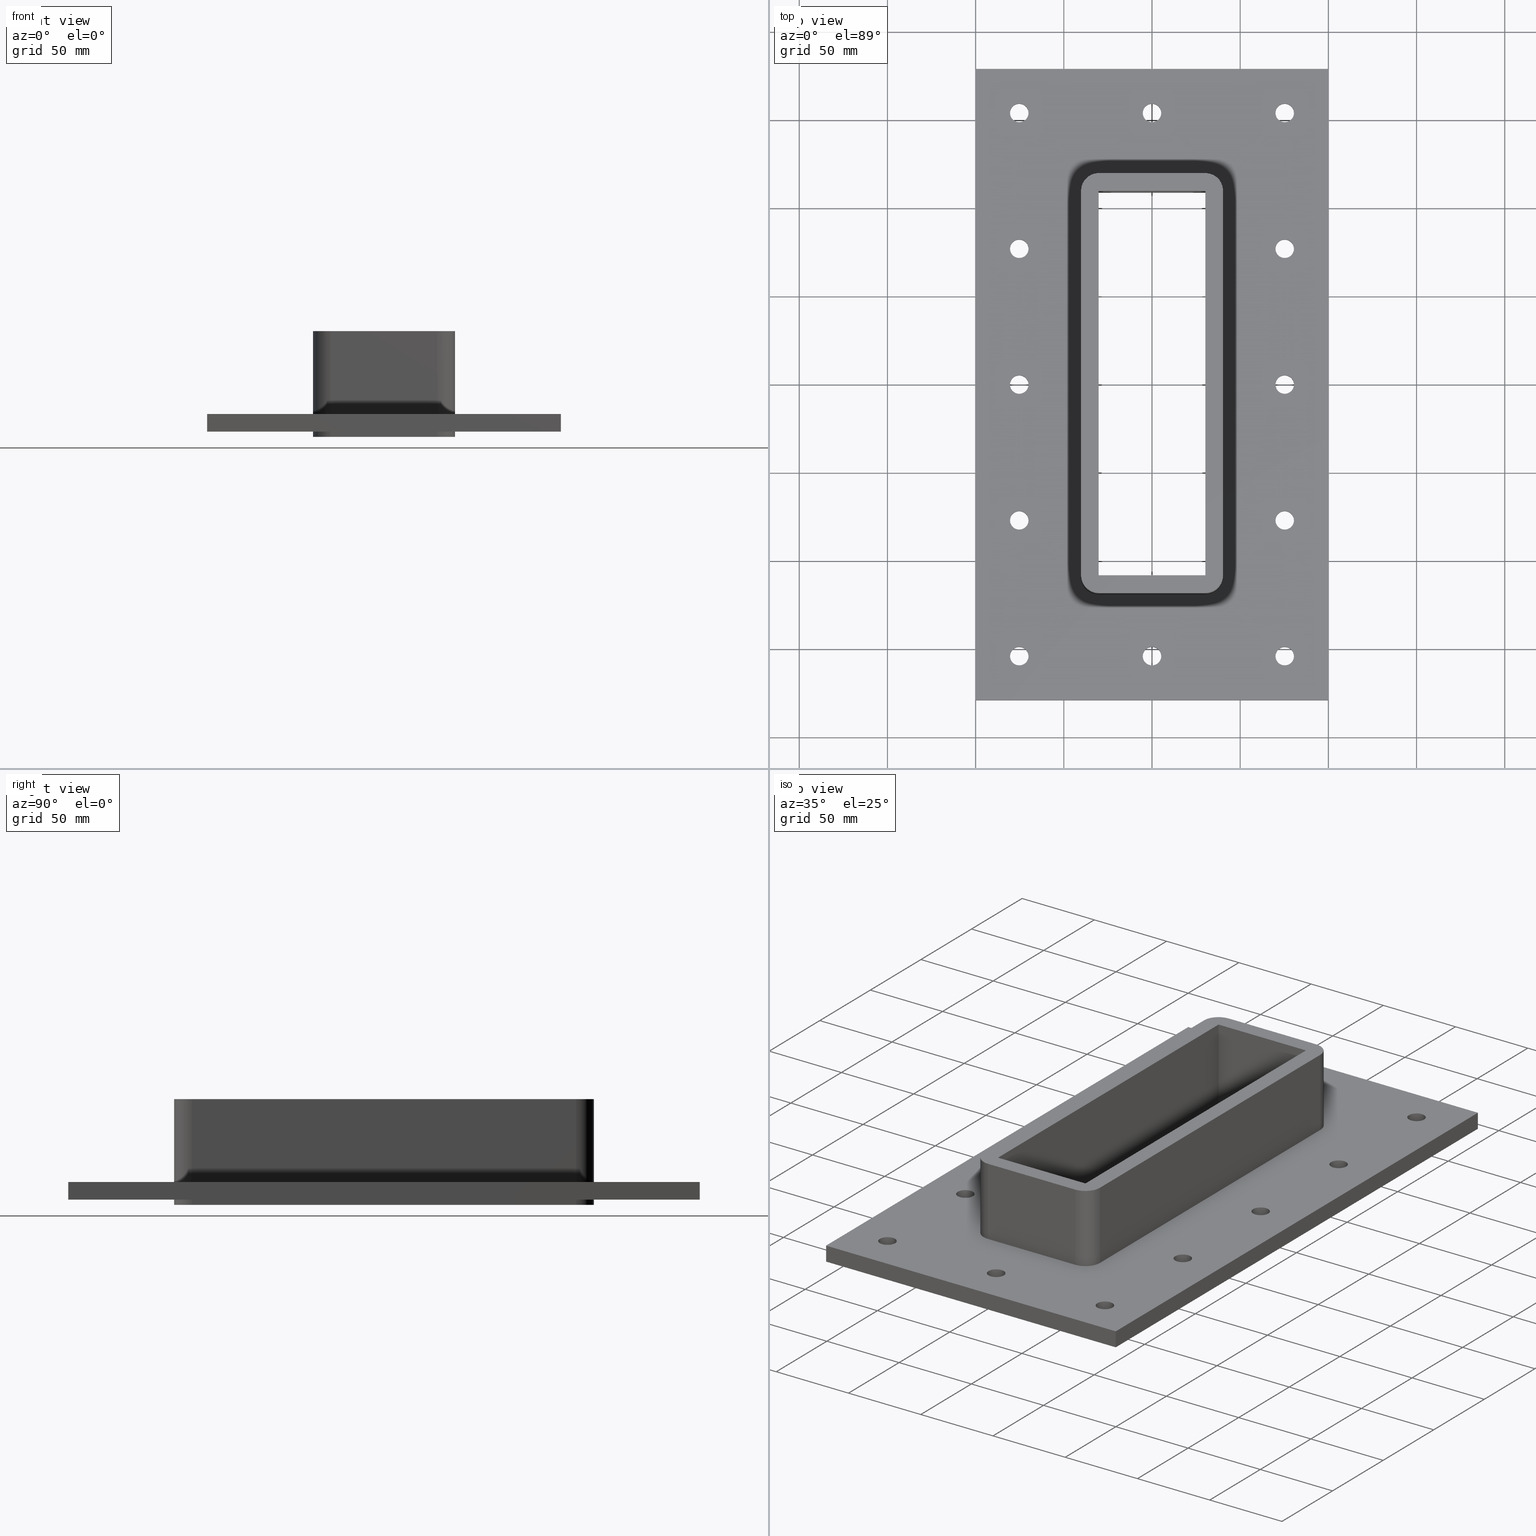
[diagram: canonical four-view strip — front | top / right | iso, engineering-drawing reading convention]
A machine part, canonical four-view strip (front | top / right | iso — engineering-drawing reading convention). The complete STEP part file that produces these views, byte-faithful:
ISO-10303-21;
HEADER;
/****************************************************************
 * Generated by software with PDElib inside                    *
 * PDElib Version v51a, created Wed 11/30/2011                  *
 * ITI Transcendata (http://www.transcendata.com/)              *
 ****************************************************************/
FILE_DESCRIPTION((''),'2;1');
FILE_NAME('C:\\Users\\se-milkar\\Desktop\\SFHM GENERATOR\\File dump\\SFHM5X1.stp','2017-01-17T17:24:51',(''),(''),'Autodesk Inventor 2013','Autodesk Inventor 2013','');
FILE_SCHEMA(('AUTOMOTIVE_DESIGN { 1 0 10303 214 1 1 1 1 }'));
ENDSEC;
DATA;
#5=APPLICATION_CONTEXT('automotive design');
#6=APPLICATION_PROTOCOL_DEFINITION('International Standard','automotive_design',2001,#5);
#7=PRODUCT_CONTEXT('',#5,'mechanical');
#8=PRODUCT('RTD-FRAME GENERATOR SF-LABB','RTD-FRAME GENERATOR SF-LABB',$,(#7));
#9=PRODUCT_RELATED_PRODUCT_CATEGORY('part',$,(#8));
#10=PRODUCT_DEFINITION_FORMATION('',$,#8);
#11=PRODUCT_DEFINITION_CONTEXT('part definition',#5,'design');
#12=PRODUCT_DEFINITION('',$,#10,#11);
#18=(NAMED_UNIT(*)PLANE_ANGLE_UNIT()SI_UNIT($,.RADIAN.));
#19=DIMENSIONAL_EXPONENTS(0.0,0.0,0.0,0.0,0.0,0.0,0.0);
#20=PLANE_ANGLE_MEASURE_WITH_UNIT(PLANE_ANGLE_MEASURE(0.0174532925),#18);
#24=(CONVERSION_BASED_UNIT('DEGREE',#20)NAMED_UNIT(#19)PLANE_ANGLE_UNIT());
#28=(NAMED_UNIT(*)SI_UNIT($,.STERADIAN.)SOLID_ANGLE_UNIT());
#32=(LENGTH_UNIT()NAMED_UNIT(*)SI_UNIT(.MILLI.,.METRE.));
#34=UNCERTAINTY_MEASURE_WITH_UNIT(LENGTH_MEASURE(0.01),#32,'DISTANCE_ACCURACY_VALUE','');
#36=(GEOMETRIC_REPRESENTATION_CONTEXT(3)GLOBAL_UNCERTAINTY_ASSIGNED_CONTEXT((#34))GLOBAL_UNIT_ASSIGNED_CONTEXT((#24,#28,#32))REPRESENTATION_CONTEXT('None','None'));
#37=AXIS2_PLACEMENT_3D('',#38,#39,#40);
#38=CARTESIAN_POINT('',(0.0,0.0,0.0));
#39=DIRECTION('',(0.0,0.0,1.0));
#40=DIRECTION('',(1.0,0.0,0.0));
#41=SHAPE_REPRESENTATION('',(#37),#36);
#42=PRODUCT_DEFINITION_SHAPE('','',#12);
#43=SHAPE_DEFINITION_REPRESENTATION(#42,#41);
#49=(NAMED_UNIT(*)PLANE_ANGLE_UNIT()SI_UNIT($,.RADIAN.));
#50=DIMENSIONAL_EXPONENTS(0.0,0.0,0.0,0.0,0.0,0.0,0.0);
#51=PLANE_ANGLE_MEASURE_WITH_UNIT(PLANE_ANGLE_MEASURE(0.0174532925),#49);
#55=(CONVERSION_BASED_UNIT('DEGREE',#51)NAMED_UNIT(#50)PLANE_ANGLE_UNIT());
#59=(NAMED_UNIT(*)SI_UNIT($,.STERADIAN.)SOLID_ANGLE_UNIT());
#63=(LENGTH_UNIT()NAMED_UNIT(*)SI_UNIT(.MILLI.,.METRE.));
#65=UNCERTAINTY_MEASURE_WITH_UNIT(LENGTH_MEASURE(0.000001),#63,'DISTANCE_ACCURACY_VALUE','');
#67=(GEOMETRIC_REPRESENTATION_CONTEXT(3)GLOBAL_UNCERTAINTY_ASSIGNED_CONTEXT((#65))GLOBAL_UNIT_ASSIGNED_CONTEXT((#55,#59,#63))REPRESENTATION_CONTEXT('','3D'));
#68=CARTESIAN_POINT('',(-1.776357E-014,-154.00000000000003,-431.68572437449546));
#69=DIRECTION('',(0.0,0.0,1.0));
#70=DIRECTION('',(1.0,0.0,0.0));
#71=AXIS2_PLACEMENT_3D('',#68,#69,#70);
#72=CYLINDRICAL_SURFACE('',#71,5.25);
#73=CARTESIAN_POINT('',(-5.250000000000021,-154.00000000000003,-27.000000000000028));
#74=VERTEX_POINT('',#73);
#75=CARTESIAN_POINT('',(-1.776357E-014,-154.00000000000003,-27.000000000000028));
#76=DIRECTION('',(0.0,0.0,1.0));
#77=DIRECTION('',(1.0,0.0,0.0));
#78=AXIS2_PLACEMENT_3D('',#75,#76,#77);
#79=CIRCLE('',#78,5.25);
#80=EDGE_CURVE('',#74,#74,#79,.T.);
#81=ORIENTED_EDGE('',*,*,#80,.F.);
#82=EDGE_LOOP('',(#81));
#83=FACE_OUTER_BOUND('',#82,.T.);
#84=CARTESIAN_POINT('',(5.249999999999986,-154.00000000000003,-17.0));
#85=VERTEX_POINT('',#84);
#86=CARTESIAN_POINT('',(-1.776357E-014,-154.00000000000003,-17.000000000000028));
#87=DIRECTION('',(0.0,0.0,-1.0));
#88=DIRECTION('',(1.0,0.0,0.0));
#89=AXIS2_PLACEMENT_3D('',#86,#87,#88);
#90=CIRCLE('',#89,5.25);
#91=EDGE_CURVE('',#85,#85,#90,.T.);
#92=ORIENTED_EDGE('',*,*,#91,.F.);
#93=EDGE_LOOP('',(#92));
#94=FACE_BOUND('',#93,.T.);
#95=ADVANCED_FACE('',(#83,#94),#72,.F.);
#96=CARTESIAN_POINT('',(-4.440892E-014,154.0,-431.68572437449546));
#97=DIRECTION('',(0.0,0.0,1.0));
#98=DIRECTION('',(1.0,0.0,0.0));
#99=AXIS2_PLACEMENT_3D('',#96,#97,#98);
#100=CYLINDRICAL_SURFACE('',#99,5.25);
#101=CARTESIAN_POINT('',(-5.250000000000039,154.0,-27.000000000000028));
#102=VERTEX_POINT('',#101);
#103=CARTESIAN_POINT('',(-4.440892E-014,154.0,-27.000000000000028));
#104=DIRECTION('',(0.0,0.0,1.0));
#105=DIRECTION('',(1.0,0.0,0.0));
#106=AXIS2_PLACEMENT_3D('',#103,#104,#105);
#107=CIRCLE('',#106,5.25);
#108=EDGE_CURVE('',#102,#102,#107,.T.);
#109=ORIENTED_EDGE('',*,*,#108,.F.);
#110=EDGE_LOOP('',(#109));
#111=FACE_OUTER_BOUND('',#110,.T.);
#112=CARTESIAN_POINT('',(5.249999999999959,154.0,-17.0));
#113=VERTEX_POINT('',#112);
#114=CARTESIAN_POINT('',(-4.440892E-014,154.0,-17.000000000000028));
#115=DIRECTION('',(0.0,0.0,-1.0));
#116=DIRECTION('',(1.0,0.0,0.0));
#117=AXIS2_PLACEMENT_3D('',#114,#115,#116);
#118=CIRCLE('',#117,5.25);
#119=EDGE_CURVE('',#113,#113,#118,.T.);
#120=ORIENTED_EDGE('',*,*,#119,.F.);
#121=EDGE_LOOP('',(#120));
#122=FACE_BOUND('',#121,.T.);
#123=ADVANCED_FACE('',(#111,#122),#100,.F.);
#124=CARTESIAN_POINT('',(75.249999999999986,-77.000000000000014,-431.68572437449546));
#125=DIRECTION('',(0.0,0.0,1.0));
#126=DIRECTION('',(1.0,0.0,0.0));
#127=AXIS2_PLACEMENT_3D('',#124,#125,#126);
#128=CYLINDRICAL_SURFACE('',#127,5.25);
#129=CARTESIAN_POINT('',(69.999999999999986,-77.000000000000014,-27.000000000000028));
#130=VERTEX_POINT('',#129);
#131=CARTESIAN_POINT('',(75.249999999999986,-77.000000000000014,-27.000000000000028));
#132=DIRECTION('',(0.0,0.0,1.0));
#133=DIRECTION('',(1.0,0.0,0.0));
#134=AXIS2_PLACEMENT_3D('',#131,#132,#133);
#135=CIRCLE('',#134,5.25);
#136=EDGE_CURVE('',#130,#130,#135,.T.);
#137=ORIENTED_EDGE('',*,*,#136,.F.);
#138=EDGE_LOOP('',(#137));
#139=FACE_OUTER_BOUND('',#138,.T.);
#140=CARTESIAN_POINT('',(80.499999999999986,-77.000000000000014,-17.0));
#141=VERTEX_POINT('',#140);
#142=CARTESIAN_POINT('',(75.249999999999986,-77.000000000000014,-17.000000000000028));
#143=DIRECTION('',(0.0,0.0,-1.0));
#144=DIRECTION('',(1.0,0.0,0.0));
#145=AXIS2_PLACEMENT_3D('',#142,#143,#144);
#146=CIRCLE('',#145,5.25);
#147=EDGE_CURVE('',#141,#141,#146,.T.);
#148=ORIENTED_EDGE('',*,*,#147,.F.);
#149=EDGE_LOOP('',(#148));
#150=FACE_BOUND('',#149,.T.);
#151=ADVANCED_FACE('',(#139,#150),#128,.F.);
#152=CARTESIAN_POINT('',(75.249999999999986,-1.776357E-014,-431.68572437449546));
#153=DIRECTION('',(0.0,0.0,1.0));
#154=DIRECTION('',(1.0,0.0,0.0));
#155=AXIS2_PLACEMENT_3D('',#152,#153,#154);
#156=CYLINDRICAL_SURFACE('',#155,5.25);
#157=CARTESIAN_POINT('',(69.999999999999986,-1.776357E-014,-27.000000000000028));
#158=VERTEX_POINT('',#157);
#159=CARTESIAN_POINT('',(75.249999999999986,-1.776357E-014,-27.000000000000028));
#160=DIRECTION('',(0.0,0.0,1.0));
#161=DIRECTION('',(1.0,0.0,0.0));
#162=AXIS2_PLACEMENT_3D('',#159,#160,#161);
#163=CIRCLE('',#162,5.25);
#164=EDGE_CURVE('',#158,#158,#163,.T.);
#165=ORIENTED_EDGE('',*,*,#164,.F.);
#166=EDGE_LOOP('',(#165));
#167=FACE_OUTER_BOUND('',#166,.T.);
#168=CARTESIAN_POINT('',(80.499999999999986,-1.776357E-014,-17.0));
#169=VERTEX_POINT('',#168);
#170=CARTESIAN_POINT('',(75.249999999999986,-1.776357E-014,-17.000000000000028));
#171=DIRECTION('',(0.0,0.0,-1.0));
#172=DIRECTION('',(1.0,0.0,0.0));
#173=AXIS2_PLACEMENT_3D('',#170,#171,#172);
#174=CIRCLE('',#173,5.25);
#175=EDGE_CURVE('',#169,#169,#174,.T.);
#176=ORIENTED_EDGE('',*,*,#175,.F.);
#177=EDGE_LOOP('',(#176));
#178=FACE_BOUND('',#177,.T.);
#179=ADVANCED_FACE('',(#167,#178),#156,.F.);
#180=CARTESIAN_POINT('',(75.249999999999986,77.0,-431.68572437449546));
#181=DIRECTION('',(0.0,0.0,1.0));
#182=DIRECTION('',(1.0,0.0,0.0));
#183=AXIS2_PLACEMENT_3D('',#180,#181,#182);
#184=CYLINDRICAL_SURFACE('',#183,5.25);
#185=CARTESIAN_POINT('',(69.999999999999986,77.0,-27.000000000000028));
#186=VERTEX_POINT('',#185);
#187=CARTESIAN_POINT('',(75.249999999999986,77.0,-27.000000000000028));
#188=DIRECTION('',(0.0,0.0,1.0));
#189=DIRECTION('',(1.0,0.0,0.0));
#190=AXIS2_PLACEMENT_3D('',#187,#188,#189);
#191=CIRCLE('',#190,5.25);
#192=EDGE_CURVE('',#186,#186,#191,.T.);
#193=ORIENTED_EDGE('',*,*,#192,.F.);
#194=EDGE_LOOP('',(#193));
#195=FACE_OUTER_BOUND('',#194,.T.);
#196=CARTESIAN_POINT('',(80.499999999999986,77.0,-17.0));
#197=VERTEX_POINT('',#196);
#198=CARTESIAN_POINT('',(75.249999999999986,77.0,-17.000000000000028));
#199=DIRECTION('',(0.0,0.0,-1.0));
#200=DIRECTION('',(1.0,0.0,0.0));
#201=AXIS2_PLACEMENT_3D('',#198,#199,#200);
#202=CIRCLE('',#201,5.25);
#203=EDGE_CURVE('',#197,#197,#202,.T.);
#204=ORIENTED_EDGE('',*,*,#203,.F.);
#205=EDGE_LOOP('',(#204));
#206=FACE_BOUND('',#205,.T.);
#207=ADVANCED_FACE('',(#195,#206),#184,.F.);
#208=CARTESIAN_POINT('',(-75.250000000000014,76.999999999999972,-431.68572437449546));
#209=DIRECTION('',(0.0,0.0,1.0));
#210=DIRECTION('',(1.0,0.0,0.0));
#211=AXIS2_PLACEMENT_3D('',#208,#209,#210);
#212=CYLINDRICAL_SURFACE('',#211,5.25);
#213=CARTESIAN_POINT('',(-80.5,76.999999999999972,-27.000000000000028));
#214=VERTEX_POINT('',#213);
#215=CARTESIAN_POINT('',(-75.250000000000014,76.999999999999972,-27.000000000000028));
#216=DIRECTION('',(0.0,0.0,1.0));
#217=DIRECTION('',(1.0,0.0,0.0));
#218=AXIS2_PLACEMENT_3D('',#215,#216,#217);
#219=CIRCLE('',#218,5.25);
#220=EDGE_CURVE('',#214,#214,#219,.T.);
#221=ORIENTED_EDGE('',*,*,#220,.F.);
#222=EDGE_LOOP('',(#221));
#223=FACE_OUTER_BOUND('',#222,.T.);
#224=CARTESIAN_POINT('',(-70.000000000000014,76.999999999999972,-17.0));
#225=VERTEX_POINT('',#224);
#226=CARTESIAN_POINT('',(-75.250000000000014,76.999999999999972,-17.000000000000028));
#227=DIRECTION('',(0.0,0.0,-1.0));
#228=DIRECTION('',(1.0,0.0,0.0));
#229=AXIS2_PLACEMENT_3D('',#226,#227,#228);
#230=CIRCLE('',#229,5.25);
#231=EDGE_CURVE('',#225,#225,#230,.T.);
#232=ORIENTED_EDGE('',*,*,#231,.F.);
#233=EDGE_LOOP('',(#232));
#234=FACE_BOUND('',#233,.T.);
#235=ADVANCED_FACE('',(#223,#234),#212,.F.);
#236=CARTESIAN_POINT('',(-75.249999999999972,-1.776357E-014,-431.68572437449546));
#237=DIRECTION('',(0.0,0.0,1.0));
#238=DIRECTION('',(1.0,0.0,0.0));
#239=AXIS2_PLACEMENT_3D('',#236,#237,#238);
#240=CYLINDRICAL_SURFACE('',#239,5.25);
#241=CARTESIAN_POINT('',(-80.499999999999986,-1.776357E-014,-27.000000000000028));
#242=VERTEX_POINT('',#241);
#243=CARTESIAN_POINT('',(-75.249999999999972,-1.776357E-014,-27.000000000000028));
#244=DIRECTION('',(0.0,0.0,1.0));
#245=DIRECTION('',(1.0,0.0,0.0));
#246=AXIS2_PLACEMENT_3D('',#243,#244,#245);
#247=CIRCLE('',#246,5.25);
#248=EDGE_CURVE('',#242,#242,#247,.T.);
#249=ORIENTED_EDGE('',*,*,#248,.F.);
#250=EDGE_LOOP('',(#249));
#251=FACE_OUTER_BOUND('',#250,.T.);
#252=CARTESIAN_POINT('',(-69.999999999999972,-1.776357E-014,-17.0));
#253=VERTEX_POINT('',#252);
#254=CARTESIAN_POINT('',(-75.249999999999972,-1.776357E-014,-17.000000000000028));
#255=DIRECTION('',(0.0,0.0,-1.0));
#256=DIRECTION('',(1.0,0.0,0.0));
#257=AXIS2_PLACEMENT_3D('',#254,#255,#256);
#258=CIRCLE('',#257,5.25);
#259=EDGE_CURVE('',#253,#253,#258,.T.);
#260=ORIENTED_EDGE('',*,*,#259,.F.);
#261=EDGE_LOOP('',(#260));
#262=FACE_BOUND('',#261,.T.);
#263=ADVANCED_FACE('',(#251,#262),#240,.F.);
#264=CARTESIAN_POINT('',(-75.249999999999943,-77.000000000000028,-431.68572437449546));
#265=DIRECTION('',(0.0,0.0,1.0));
#266=DIRECTION('',(1.0,0.0,0.0));
#267=AXIS2_PLACEMENT_3D('',#264,#265,#266);
#268=CYLINDRICAL_SURFACE('',#267,5.25);
#269=CARTESIAN_POINT('',(-80.499999999999957,-77.000000000000028,-27.000000000000028));
#270=VERTEX_POINT('',#269);
#271=CARTESIAN_POINT('',(-75.249999999999943,-77.000000000000028,-27.000000000000028));
#272=DIRECTION('',(0.0,0.0,1.0));
#273=DIRECTION('',(1.0,0.0,0.0));
#274=AXIS2_PLACEMENT_3D('',#271,#272,#273);
#275=CIRCLE('',#274,5.25);
#276=EDGE_CURVE('',#270,#270,#275,.T.);
#277=ORIENTED_EDGE('',*,*,#276,.F.);
#278=EDGE_LOOP('',(#277));
#279=FACE_OUTER_BOUND('',#278,.T.);
#280=CARTESIAN_POINT('',(-69.999999999999943,-77.000000000000028,-17.0));
#281=VERTEX_POINT('',#280);
#282=CARTESIAN_POINT('',(-75.249999999999943,-77.000000000000028,-17.000000000000028));
#283=DIRECTION('',(0.0,0.0,-1.0));
#284=DIRECTION('',(1.0,0.0,0.0));
#285=AXIS2_PLACEMENT_3D('',#282,#283,#284);
#286=CIRCLE('',#285,5.25);
#287=EDGE_CURVE('',#281,#281,#286,.T.);
#288=ORIENTED_EDGE('',*,*,#287,.F.);
#289=EDGE_LOOP('',(#288));
#290=FACE_BOUND('',#289,.T.);
#291=ADVANCED_FACE('',(#279,#290),#268,.F.);
#292=CARTESIAN_POINT('',(-75.250000000000043,154.0,-431.68572437449546));
#293=DIRECTION('',(0.0,0.0,1.0));
#294=DIRECTION('',(1.0,0.0,0.0));
#295=AXIS2_PLACEMENT_3D('',#292,#293,#294);
#296=CYLINDRICAL_SURFACE('',#295,5.25);
#297=CARTESIAN_POINT('',(-80.500000000000043,154.0,-27.000000000000028));
#298=VERTEX_POINT('',#297);
#299=CARTESIAN_POINT('',(-75.250000000000043,154.0,-27.000000000000028));
#300=DIRECTION('',(0.0,0.0,1.0));
#301=DIRECTION('',(1.0,0.0,0.0));
#302=AXIS2_PLACEMENT_3D('',#299,#300,#301);
#303=CIRCLE('',#302,5.25);
#304=EDGE_CURVE('',#298,#298,#303,.T.);
#305=ORIENTED_EDGE('',*,*,#304,.F.);
#306=EDGE_LOOP('',(#305));
#307=FACE_OUTER_BOUND('',#306,.T.);
#308=CARTESIAN_POINT('',(-70.000000000000043,154.0,-17.0));
#309=VERTEX_POINT('',#308);
#310=CARTESIAN_POINT('',(-75.250000000000043,154.0,-17.000000000000028));
#311=DIRECTION('',(0.0,0.0,-1.0));
#312=DIRECTION('',(1.0,0.0,0.0));
#313=AXIS2_PLACEMENT_3D('',#310,#311,#312);
#314=CIRCLE('',#313,5.25);
#315=EDGE_CURVE('',#309,#309,#314,.T.);
#316=ORIENTED_EDGE('',*,*,#315,.F.);
#317=EDGE_LOOP('',(#316));
#318=FACE_BOUND('',#317,.T.);
#319=ADVANCED_FACE('',(#307,#318),#296,.F.);
#320=CARTESIAN_POINT('',(75.249999999999986,154.0,-431.68572437449546));
#321=DIRECTION('',(0.0,0.0,1.0));
#322=DIRECTION('',(1.0,0.0,0.0));
#323=AXIS2_PLACEMENT_3D('',#320,#321,#322);
#324=CYLINDRICAL_SURFACE('',#323,5.25);
#325=CARTESIAN_POINT('',(69.999999999999986,154.0,-27.000000000000028));
#326=VERTEX_POINT('',#325);
#327=CARTESIAN_POINT('',(75.249999999999986,154.0,-27.000000000000028));
#328=DIRECTION('',(0.0,0.0,1.0));
#329=DIRECTION('',(1.0,0.0,0.0));
#330=AXIS2_PLACEMENT_3D('',#327,#328,#329);
#331=CIRCLE('',#330,5.25);
#332=EDGE_CURVE('',#326,#326,#331,.T.);
#333=ORIENTED_EDGE('',*,*,#332,.F.);
#334=EDGE_LOOP('',(#333));
#335=FACE_OUTER_BOUND('',#334,.T.);
#336=CARTESIAN_POINT('',(80.499999999999986,154.0,-17.0));
#337=VERTEX_POINT('',#336);
#338=CARTESIAN_POINT('',(75.249999999999986,154.0,-17.000000000000028));
#339=DIRECTION('',(0.0,0.0,-1.0));
#340=DIRECTION('',(1.0,0.0,0.0));
#341=AXIS2_PLACEMENT_3D('',#338,#339,#340);
#342=CIRCLE('',#341,5.25);
#343=EDGE_CURVE('',#337,#337,#342,.T.);
#344=ORIENTED_EDGE('',*,*,#343,.F.);
#345=EDGE_LOOP('',(#344));
#346=FACE_BOUND('',#345,.T.);
#347=ADVANCED_FACE('',(#335,#346),#324,.F.);
#348=CARTESIAN_POINT('',(75.249999999999986,-154.00000000000003,-431.68572437449546));
#349=DIRECTION('',(0.0,0.0,1.0));
#350=DIRECTION('',(1.0,0.0,0.0));
#351=AXIS2_PLACEMENT_3D('',#348,#349,#350);
#352=CYLINDRICAL_SURFACE('',#351,5.25);
#353=CARTESIAN_POINT('',(69.999999999999986,-154.00000000000003,-27.000000000000028));
#354=VERTEX_POINT('',#353);
#355=CARTESIAN_POINT('',(75.249999999999986,-154.00000000000003,-27.000000000000028));
#356=DIRECTION('',(0.0,0.0,1.0));
#357=DIRECTION('',(1.0,0.0,0.0));
#358=AXIS2_PLACEMENT_3D('',#355,#356,#357);
#359=CIRCLE('',#358,5.25);
#360=EDGE_CURVE('',#354,#354,#359,.T.);
#361=ORIENTED_EDGE('',*,*,#360,.F.);
#362=EDGE_LOOP('',(#361));
#363=FACE_OUTER_BOUND('',#362,.T.);
#364=CARTESIAN_POINT('',(80.499999999999986,-154.00000000000003,-17.0));
#365=VERTEX_POINT('',#364);
#366=CARTESIAN_POINT('',(75.249999999999986,-154.00000000000003,-17.000000000000028));
#367=DIRECTION('',(0.0,0.0,-1.0));
#368=DIRECTION('',(1.0,0.0,0.0));
#369=AXIS2_PLACEMENT_3D('',#366,#367,#368);
#370=CIRCLE('',#369,5.25);
#371=EDGE_CURVE('',#365,#365,#370,.T.);
#372=ORIENTED_EDGE('',*,*,#371,.F.);
#373=EDGE_LOOP('',(#372));
#374=FACE_BOUND('',#373,.T.);
#375=ADVANCED_FACE('',(#363,#374),#352,.F.);
#376=CARTESIAN_POINT('',(-75.249999999999929,-154.00000000000003,-431.68572437449546));
#377=DIRECTION('',(0.0,0.0,1.0));
#378=DIRECTION('',(1.0,0.0,0.0));
#379=AXIS2_PLACEMENT_3D('',#376,#377,#378);
#380=CYLINDRICAL_SURFACE('',#379,5.25);
#381=CARTESIAN_POINT('',(-80.499999999999915,-154.00000000000003,-27.000000000000028));
#382=VERTEX_POINT('',#381);
#383=CARTESIAN_POINT('',(-75.249999999999929,-154.00000000000003,-27.000000000000028));
#384=DIRECTION('',(0.0,0.0,1.0));
#385=DIRECTION('',(1.0,0.0,0.0));
#386=AXIS2_PLACEMENT_3D('',#383,#384,#385);
#387=CIRCLE('',#386,5.25);
#388=EDGE_CURVE('',#382,#382,#387,.T.);
#389=ORIENTED_EDGE('',*,*,#388,.F.);
#390=EDGE_LOOP('',(#389));
#391=FACE_OUTER_BOUND('',#390,.T.);
#392=CARTESIAN_POINT('',(-69.999999999999915,-154.00000000000003,-17.0));
#393=VERTEX_POINT('',#392);
#394=CARTESIAN_POINT('',(-75.249999999999929,-154.00000000000003,-17.000000000000028));
#395=DIRECTION('',(0.0,0.0,-1.0));
#396=DIRECTION('',(1.0,0.0,0.0));
#397=AXIS2_PLACEMENT_3D('',#394,#395,#396);
#398=CIRCLE('',#397,5.25);
#399=EDGE_CURVE('',#393,#393,#398,.T.);
#400=ORIENTED_EDGE('',*,*,#399,.F.);
#401=EDGE_LOOP('',(#400));
#402=FACE_BOUND('',#401,.T.);
#403=ADVANCED_FACE('',(#391,#402),#380,.F.);
#404=CARTESIAN_POINT('',(-100.25000000000006,179.00000000000003,-27.0));
#405=DIRECTION('',(-1.0,0.0,0.0));
#406=DIRECTION('',(0.0,-1.0,0.0));
#407=AXIS2_PLACEMENT_3D('',#404,#405,#406);
#408=PLANE('',#407);
#409=CARTESIAN_POINT('',(-100.24999999999991,-179.00000000000003,-27.0));
#410=VERTEX_POINT('',#409);
#411=CARTESIAN_POINT('',(-100.25000000000006,179.00000000000003,-27.0));
#412=VERTEX_POINT('',#411);
#413=CARTESIAN_POINT('',(-100.24999999999991,-179.00000000000003,-27.0));
#414=DIRECTION('',(0.0,1.0,0.0));
#415=VECTOR('',#414,358.00000000000006);
#416=LINE('',#413,#415);
#417=EDGE_CURVE('',#410,#412,#416,.T.);
#418=ORIENTED_EDGE('',*,*,#417,.F.);
#419=CARTESIAN_POINT('',(-100.24999999999991,-179.00000000000003,-17.0));
#420=VERTEX_POINT('',#419);
#421=CARTESIAN_POINT('',(-100.24999999999991,-179.00000000000003,-27.0));
#422=DIRECTION('',(0.0,0.0,1.0));
#423=VECTOR('',#422,10.0);
#424=LINE('',#421,#423);
#425=EDGE_CURVE('',#410,#420,#424,.T.);
#426=ORIENTED_EDGE('',*,*,#425,.T.);
#427=CARTESIAN_POINT('',(-100.25000000000006,179.00000000000003,-17.0));
#428=VERTEX_POINT('',#427);
#429=CARTESIAN_POINT('',(-100.25000000000006,179.00000000000003,-17.0));
#430=DIRECTION('',(0.0,-1.0,0.0));
#431=VECTOR('',#430,358.00000000000006);
#432=LINE('',#429,#431);
#433=EDGE_CURVE('',#428,#420,#432,.T.);
#434=ORIENTED_EDGE('',*,*,#433,.F.);
#435=CARTESIAN_POINT('',(-100.25000000000006,179.00000000000003,-27.0));
#436=DIRECTION('',(0.0,0.0,1.0));
#437=VECTOR('',#436,10.0);
#438=LINE('',#435,#437);
#439=EDGE_CURVE('',#412,#428,#438,.T.);
#440=ORIENTED_EDGE('',*,*,#439,.F.);
#441=EDGE_LOOP('',(#418,#426,#434,#440));
#442=FACE_OUTER_BOUND('',#441,.T.);
#443=ADVANCED_FACE('',(#442),#408,.T.);
#444=CARTESIAN_POINT('',(100.24999999999999,179.00000000000003,-27.0));
#445=DIRECTION('',(0.0,1.0,0.0));
#446=DIRECTION('',(-1.0,0.0,0.0));
#447=AXIS2_PLACEMENT_3D('',#444,#445,#446);
#448=PLANE('',#447);
#449=CARTESIAN_POINT('',(100.24999999999999,179.00000000000003,-27.0));
#450=VERTEX_POINT('',#449);
#451=CARTESIAN_POINT('',(-100.25000000000006,179.00000000000003,-27.0));
#452=DIRECTION('',(1.0,0.0,0.0));
#453=VECTOR('',#452,200.50000000000006);
#454=LINE('',#451,#453);
#455=EDGE_CURVE('',#412,#450,#454,.T.);
#456=ORIENTED_EDGE('',*,*,#455,.F.);
#457=ORIENTED_EDGE('',*,*,#439,.T.);
#458=CARTESIAN_POINT('',(100.24999999999999,179.00000000000003,-17.0));
#459=VERTEX_POINT('',#458);
#460=CARTESIAN_POINT('',(100.25,179.00000000000003,-17.0));
#461=DIRECTION('',(-1.0,0.0,0.0));
#462=VECTOR('',#461,200.50000000000006);
#463=LINE('',#460,#462);
#464=EDGE_CURVE('',#459,#428,#463,.T.);
#465=ORIENTED_EDGE('',*,*,#464,.F.);
#466=CARTESIAN_POINT('',(100.24999999999999,179.00000000000003,-27.0));
#467=DIRECTION('',(0.0,0.0,1.0));
#468=VECTOR('',#467,10.0);
#469=LINE('',#466,#468);
#470=EDGE_CURVE('',#450,#459,#469,.T.);
#471=ORIENTED_EDGE('',*,*,#470,.F.);
#472=EDGE_LOOP('',(#456,#457,#465,#471));
#473=FACE_OUTER_BOUND('',#472,.T.);
#474=ADVANCED_FACE('',(#473),#448,.T.);
#475=CARTESIAN_POINT('',(100.24999999999999,-179.00000000000003,-27.0));
#476=DIRECTION('',(1.0,0.0,0.0));
#477=DIRECTION('',(0.0,1.0,0.0));
#478=AXIS2_PLACEMENT_3D('',#475,#476,#477);
#479=PLANE('',#478);
#480=CARTESIAN_POINT('',(100.24999999999999,-179.00000000000003,-27.0));
#481=VERTEX_POINT('',#480);
#482=CARTESIAN_POINT('',(100.24999999999999,179.00000000000003,-27.0));
#483=DIRECTION('',(0.0,-1.0,0.0));
#484=VECTOR('',#483,358.00000000000006);
#485=LINE('',#482,#484);
#486=EDGE_CURVE('',#450,#481,#485,.T.);
#487=ORIENTED_EDGE('',*,*,#486,.F.);
#488=ORIENTED_EDGE('',*,*,#470,.T.);
#489=CARTESIAN_POINT('',(100.24999999999999,-179.00000000000003,-17.0));
#490=VERTEX_POINT('',#489);
#491=CARTESIAN_POINT('',(100.24999999999999,-179.00000000000003,-17.0));
#492=DIRECTION('',(0.0,1.0,0.0));
#493=VECTOR('',#492,358.00000000000006);
#494=LINE('',#491,#493);
#495=EDGE_CURVE('',#490,#459,#494,.T.);
#496=ORIENTED_EDGE('',*,*,#495,.F.);
#497=CARTESIAN_POINT('',(100.24999999999999,-179.00000000000003,-27.0));
#498=DIRECTION('',(0.0,0.0,1.0));
#499=VECTOR('',#498,10.0);
#500=LINE('',#497,#499);
#501=EDGE_CURVE('',#481,#490,#500,.T.);
#502=ORIENTED_EDGE('',*,*,#501,.F.);
#503=EDGE_LOOP('',(#487,#488,#496,#502));
#504=FACE_OUTER_BOUND('',#503,.T.);
#505=ADVANCED_FACE('',(#504),#479,.T.);
#506=CARTESIAN_POINT('',(-100.24999999999991,-179.00000000000003,-27.0));
#507=DIRECTION('',(0.0,-1.0,0.0));
#508=DIRECTION('',(1.0,0.0,0.0));
#509=AXIS2_PLACEMENT_3D('',#506,#507,#508);
#510=PLANE('',#509);
#511=CARTESIAN_POINT('',(100.24999999999999,-179.00000000000003,-27.0));
#512=DIRECTION('',(-1.0,0.0,0.0));
#513=VECTOR('',#512,200.49999999999989);
#514=LINE('',#511,#513);
#515=EDGE_CURVE('',#481,#410,#514,.T.);
#516=ORIENTED_EDGE('',*,*,#515,.F.);
#517=ORIENTED_EDGE('',*,*,#501,.T.);
#518=CARTESIAN_POINT('',(-100.2499999999999,-179.00000000000003,-17.0));
#519=DIRECTION('',(1.0,0.0,0.0));
#520=VECTOR('',#519,200.49999999999989);
#521=LINE('',#518,#520);
#522=EDGE_CURVE('',#420,#490,#521,.T.);
#523=ORIENTED_EDGE('',*,*,#522,.F.);
#524=ORIENTED_EDGE('',*,*,#425,.F.);
#525=EDGE_LOOP('',(#516,#517,#523,#524));
#526=FACE_OUTER_BOUND('',#525,.T.);
#527=ADVANCED_FACE('',(#526),#510,.T.);
#528=CARTESIAN_POINT('',(0.0,2.290021E-014,-17.0));
#529=DIRECTION('',(0.0,0.0,1.0));
#530=DIRECTION('',(1.0,0.0,0.0));
#531=AXIS2_PLACEMENT_3D('',#528,#529,#530);
#532=PLANE('',#531);
#533=ORIENTED_EDGE('',*,*,#522,.T.);
#534=ORIENTED_EDGE('',*,*,#495,.T.);
#535=ORIENTED_EDGE('',*,*,#464,.T.);
#536=ORIENTED_EDGE('',*,*,#433,.T.);
#537=EDGE_LOOP('',(#533,#534,#535,#536));
#538=FACE_OUTER_BOUND('',#537,.T.);
#539=ORIENTED_EDGE('',*,*,#91,.T.);
#540=EDGE_LOOP('',(#539));
#541=FACE_BOUND('',#540,.T.);
#542=ORIENTED_EDGE('',*,*,#119,.T.);
#543=EDGE_LOOP('',(#542));
#544=FACE_BOUND('',#543,.T.);
#545=ORIENTED_EDGE('',*,*,#147,.T.);
#546=EDGE_LOOP('',(#545));
#547=FACE_BOUND('',#546,.T.);
#548=ORIENTED_EDGE('',*,*,#175,.T.);
#549=EDGE_LOOP('',(#548));
#550=FACE_BOUND('',#549,.T.);
#551=ORIENTED_EDGE('',*,*,#203,.T.);
#552=EDGE_LOOP('',(#551));
#553=FACE_BOUND('',#552,.T.);
#554=ORIENTED_EDGE('',*,*,#231,.T.);
#555=EDGE_LOOP('',(#554));
#556=FACE_BOUND('',#555,.T.);
#557=ORIENTED_EDGE('',*,*,#259,.T.);
#558=EDGE_LOOP('',(#557));
#559=FACE_BOUND('',#558,.T.);
#560=ORIENTED_EDGE('',*,*,#287,.T.);
#561=EDGE_LOOP('',(#560));
#562=FACE_BOUND('',#561,.T.);
#563=ORIENTED_EDGE('',*,*,#315,.T.);
#564=EDGE_LOOP('',(#563));
#565=FACE_BOUND('',#564,.T.);
#566=ORIENTED_EDGE('',*,*,#343,.T.);
#567=EDGE_LOOP('',(#566));
#568=FACE_BOUND('',#567,.T.);
#569=ORIENTED_EDGE('',*,*,#371,.T.);
#570=EDGE_LOOP('',(#569));
#571=FACE_BOUND('',#570,.T.);
#572=ORIENTED_EDGE('',*,*,#399,.T.);
#573=EDGE_LOOP('',(#572));
#574=FACE_BOUND('',#573,.T.);
#575=CARTESIAN_POINT('',(40.249999999999915,109.00000000000003,-17.0));
#576=VERTEX_POINT('',#575);
#577=CARTESIAN_POINT('',(30.249999999999986,119.00000000000006,-17.0));
#578=VERTEX_POINT('',#577);
#579=CARTESIAN_POINT('',(30.249999999999915,109.00000000000013,-17.0));
#580=DIRECTION('',(0.0,0.0,1.0));
#581=DIRECTION('',(0.707106781186547,0.707106781186547,0.0));
#582=AXIS2_PLACEMENT_3D('',#579,#580,#581);
#583=CIRCLE('',#582,9.999999999999998);
#584=EDGE_CURVE('',#576,#578,#583,.T.);
#585=ORIENTED_EDGE('',*,*,#584,.F.);
#586=CARTESIAN_POINT('',(40.250000000000057,-109.00000000000003,-17.0));
#587=VERTEX_POINT('',#586);
#588=CARTESIAN_POINT('',(40.249999999999986,-109.00000000000001,-17.0));
#589=DIRECTION('',(0.0,1.0,0.0));
#590=VECTOR('',#589,218.00000000000006);
#591=LINE('',#588,#590);
#592=EDGE_CURVE('',#587,#576,#591,.T.);
#593=ORIENTED_EDGE('',*,*,#592,.F.);
#594=CARTESIAN_POINT('',(30.249999999999986,-119.00000000000003,-17.0));
#595=VERTEX_POINT('',#594);
#596=CARTESIAN_POINT('',(30.249999999999982,-108.99999999999984,-17.0));
#597=DIRECTION('',(0.0,0.0,1.0));
#598=DIRECTION('',(0.707106781186548,-0.707106781186547,0.0));
#599=AXIS2_PLACEMENT_3D('',#596,#597,#598);
#600=CIRCLE('',#599,10.0);
#601=EDGE_CURVE('',#595,#587,#600,.T.);
#602=ORIENTED_EDGE('',*,*,#601,.F.);
#603=CARTESIAN_POINT('',(-30.250000000000057,-119.00000000000003,-17.0));
#604=VERTEX_POINT('',#603);
#605=CARTESIAN_POINT('',(-30.250000000000057,-118.99999999999984,-17.0));
#606=DIRECTION('',(1.0,0.0,0.0));
#607=VECTOR('',#606,60.500000000000043);
#608=LINE('',#605,#607);
#609=EDGE_CURVE('',#604,#595,#608,.T.);
#610=ORIENTED_EDGE('',*,*,#609,.F.);
#611=CARTESIAN_POINT('',(-40.249999999999986,-109.00000000000003,-17.0));
#612=VERTEX_POINT('',#611);
#613=CARTESIAN_POINT('',(-30.249999999999989,-108.99999999999984,-17.0));
#614=DIRECTION('',(0.0,0.0,1.0));
#615=DIRECTION('',(-0.707106781186547,-0.707106781186548,0.0));
#616=AXIS2_PLACEMENT_3D('',#613,#614,#615);
#617=CIRCLE('',#616,9.999999999999998);
#618=EDGE_CURVE('',#612,#604,#617,.T.);
#619=ORIENTED_EDGE('',*,*,#618,.F.);
#620=CARTESIAN_POINT('',(-40.250000000000128,109.00000000000003,-17.0));
#621=VERTEX_POINT('',#620);
#622=CARTESIAN_POINT('',(-40.250000000000057,109.00000000000003,-17.0));
#623=DIRECTION('',(0.0,-1.0,0.0));
#624=VECTOR('',#623,218.00000000000003);
#625=LINE('',#622,#624);
#626=EDGE_CURVE('',#621,#612,#625,.T.);
#627=ORIENTED_EDGE('',*,*,#626,.F.);
#628=CARTESIAN_POINT('',(-30.250000000000057,119.00000000000006,-17.0));
#629=VERTEX_POINT('',#628);
#630=CARTESIAN_POINT('',(-30.250000000000057,109.00000000000017,-17.0));
#631=DIRECTION('',(0.0,0.0,1.0));
#632=DIRECTION('',(-0.707106781186547,0.707106781186547,0.0));
#633=AXIS2_PLACEMENT_3D('',#630,#631,#632);
#634=CIRCLE('',#633,9.999999999999998);
#635=EDGE_CURVE('',#629,#621,#634,.T.);
#636=ORIENTED_EDGE('',*,*,#635,.F.);
#637=CARTESIAN_POINT('',(30.249999999999986,119.00000000000013,-17.0));
#638=DIRECTION('',(-1.0,0.0,0.0));
#639=VECTOR('',#638,60.500000000000043);
#640=LINE('',#637,#639);
#641=EDGE_CURVE('',#578,#629,#640,.T.);
#642=ORIENTED_EDGE('',*,*,#641,.F.);
#643=EDGE_LOOP('',(#585,#593,#602,#610,#619,#627,#636,#642));
#644=FACE_BOUND('',#643,.T.);
#645=ADVANCED_FACE('',(#538,#541,#544,#547,#550,#553,#556,#559,#562,#565,#568,#571,#574,#644),#532,.T.);
#646=CARTESIAN_POINT('',(0.0,2.290021E-014,-27.0));
#647=DIRECTION('',(0.0,0.0,1.0));
#648=DIRECTION('',(1.0,0.0,0.0));
#649=AXIS2_PLACEMENT_3D('',#646,#647,#648);
#650=PLANE('',#649);
#651=ORIENTED_EDGE('',*,*,#515,.T.);
#652=ORIENTED_EDGE('',*,*,#417,.T.);
#653=ORIENTED_EDGE('',*,*,#455,.T.);
#654=ORIENTED_EDGE('',*,*,#486,.T.);
#655=EDGE_LOOP('',(#651,#652,#653,#654));
#656=FACE_OUTER_BOUND('',#655,.T.);
#657=ORIENTED_EDGE('',*,*,#80,.T.);
#658=EDGE_LOOP('',(#657));
#659=FACE_BOUND('',#658,.T.);
#660=ORIENTED_EDGE('',*,*,#108,.T.);
#661=EDGE_LOOP('',(#660));
#662=FACE_BOUND('',#661,.T.);
#663=ORIENTED_EDGE('',*,*,#136,.T.);
#664=EDGE_LOOP('',(#663));
#665=FACE_BOUND('',#664,.T.);
#666=ORIENTED_EDGE('',*,*,#164,.T.);
#667=EDGE_LOOP('',(#666));
#668=FACE_BOUND('',#667,.T.);
#669=ORIENTED_EDGE('',*,*,#192,.T.);
#670=EDGE_LOOP('',(#669));
#671=FACE_BOUND('',#670,.T.);
#672=ORIENTED_EDGE('',*,*,#220,.T.);
#673=EDGE_LOOP('',(#672));
#674=FACE_BOUND('',#673,.T.);
#675=ORIENTED_EDGE('',*,*,#248,.T.);
#676=EDGE_LOOP('',(#675));
#677=FACE_BOUND('',#676,.T.);
#678=ORIENTED_EDGE('',*,*,#276,.T.);
#679=EDGE_LOOP('',(#678));
#680=FACE_BOUND('',#679,.T.);
#681=ORIENTED_EDGE('',*,*,#304,.T.);
#682=EDGE_LOOP('',(#681));
#683=FACE_BOUND('',#682,.T.);
#684=ORIENTED_EDGE('',*,*,#332,.T.);
#685=EDGE_LOOP('',(#684));
#686=FACE_BOUND('',#685,.T.);
#687=ORIENTED_EDGE('',*,*,#360,.T.);
#688=EDGE_LOOP('',(#687));
#689=FACE_BOUND('',#688,.T.);
#690=ORIENTED_EDGE('',*,*,#388,.T.);
#691=EDGE_LOOP('',(#690));
#692=FACE_BOUND('',#691,.T.);
#693=CARTESIAN_POINT('',(30.249999999999986,119.00000000000006,-27.0));
#694=VERTEX_POINT('',#693);
#695=CARTESIAN_POINT('',(40.249999999999915,109.00000000000003,-27.0));
#696=VERTEX_POINT('',#695);
#697=CARTESIAN_POINT('',(30.249999999999915,109.00000000000013,-27.0));
#698=DIRECTION('',(0.0,0.0,-1.0));
#699=DIRECTION('',(0.707106781186547,0.707106781186547,0.0));
#700=AXIS2_PLACEMENT_3D('',#697,#698,#699);
#701=CIRCLE('',#700,9.999999999999998);
#702=EDGE_CURVE('',#694,#696,#701,.T.);
#703=ORIENTED_EDGE('',*,*,#702,.F.);
#704=CARTESIAN_POINT('',(-30.250000000000057,119.00000000000006,-27.0));
#705=VERTEX_POINT('',#704);
#706=CARTESIAN_POINT('',(-30.250000000000057,119.00000000000016,-27.0));
#707=DIRECTION('',(1.0,0.0,0.0));
#708=VECTOR('',#707,60.500000000000043);
#709=LINE('',#706,#708);
#710=EDGE_CURVE('',#705,#694,#709,.T.);
#711=ORIENTED_EDGE('',*,*,#710,.F.);
#712=CARTESIAN_POINT('',(-40.250000000000128,109.00000000000003,-27.0));
#713=VERTEX_POINT('',#712);
#714=CARTESIAN_POINT('',(-30.250000000000057,109.00000000000017,-27.0));
#715=DIRECTION('',(0.0,0.0,-1.0));
#716=DIRECTION('',(-0.707106781186547,0.707106781186547,0.0));
#717=AXIS2_PLACEMENT_3D('',#714,#715,#716);
#718=CIRCLE('',#717,9.999999999999998);
#719=EDGE_CURVE('',#713,#705,#718,.T.);
#720=ORIENTED_EDGE('',*,*,#719,.F.);
#721=CARTESIAN_POINT('',(-40.249999999999986,-109.00000000000003,-27.0));
#722=VERTEX_POINT('',#721);
#723=CARTESIAN_POINT('',(-40.249999999999993,-109.0,-27.0));
#724=DIRECTION('',(0.0,1.0,0.0));
#725=VECTOR('',#724,218.00000000000003);
#726=LINE('',#723,#725);
#727=EDGE_CURVE('',#722,#713,#726,.T.);
#728=ORIENTED_EDGE('',*,*,#727,.F.);
#729=CARTESIAN_POINT('',(-30.250000000000057,-119.00000000000003,-27.0));
#730=VERTEX_POINT('',#729);
#731=CARTESIAN_POINT('',(-30.249999999999989,-108.99999999999984,-27.0));
#732=DIRECTION('',(0.0,0.0,-1.0));
#733=DIRECTION('',(-0.707106781186547,-0.707106781186548,0.0));
#734=AXIS2_PLACEMENT_3D('',#731,#732,#733);
#735=CIRCLE('',#734,9.999999999999998);
#736=EDGE_CURVE('',#730,#722,#735,.T.);
#737=ORIENTED_EDGE('',*,*,#736,.F.);
#738=CARTESIAN_POINT('',(30.249999999999986,-119.00000000000003,-27.0));
#739=VERTEX_POINT('',#738);
#740=CARTESIAN_POINT('',(30.249999999999986,-118.99999999999984,-27.0));
#741=DIRECTION('',(-1.0,0.0,0.0));
#742=VECTOR('',#741,60.500000000000043);
#743=LINE('',#740,#742);
#744=EDGE_CURVE('',#739,#730,#743,.T.);
#745=ORIENTED_EDGE('',*,*,#744,.F.);
#746=CARTESIAN_POINT('',(40.250000000000057,-109.00000000000003,-27.0));
#747=VERTEX_POINT('',#746);
#748=CARTESIAN_POINT('',(30.249999999999982,-108.99999999999984,-27.0));
#749=DIRECTION('',(0.0,0.0,-1.0));
#750=DIRECTION('',(0.707106781186548,-0.707106781186547,0.0));
#751=AXIS2_PLACEMENT_3D('',#748,#749,#750);
#752=CIRCLE('',#751,10.0);
#753=EDGE_CURVE('',#747,#739,#752,.T.);
#754=ORIENTED_EDGE('',*,*,#753,.F.);
#755=CARTESIAN_POINT('',(40.249999999999922,109.00000000000004,-27.0));
#756=DIRECTION('',(0.0,-1.0,0.0));
#757=VECTOR('',#756,218.00000000000006);
#758=LINE('',#755,#757);
#759=EDGE_CURVE('',#696,#747,#758,.T.);
#760=ORIENTED_EDGE('',*,*,#759,.F.);
#761=EDGE_LOOP('',(#703,#711,#720,#728,#737,#745,#754,#760));
#762=FACE_BOUND('',#761,.T.);
#763=ADVANCED_FACE('',(#656,#659,#662,#665,#668,#671,#674,#677,#680,#683,#686,#689,#692,#762),#650,.F.);
#764=CARTESIAN_POINT('',(30.249999999999982,-108.99999999999984,0.0));
#765=DIRECTION('',(0.0,0.0,1.0));
#766=DIRECTION('',(0.707106781186548,-0.707106781186547,0.0));
#767=AXIS2_PLACEMENT_3D('',#764,#765,#766);
#768=CYLINDRICAL_SURFACE('',#767,10.0);
#769=ORIENTED_EDGE('',*,*,#753,.T.);
#770=CARTESIAN_POINT('',(30.249999999999986,-118.99999999999984,-30.0));
#771=VERTEX_POINT('',#770);
#772=CARTESIAN_POINT('',(30.249999999999982,-118.99999999999984,-27.0));
#773=DIRECTION('',(0.0,0.0,-1.0));
#774=VECTOR('',#773,3.0);
#775=LINE('',#772,#774);
#776=EDGE_CURVE('',#739,#771,#775,.T.);
#777=ORIENTED_EDGE('',*,*,#776,.T.);
#778=CARTESIAN_POINT('',(40.249999999999986,-108.99999999999984,-30.0));
#779=VERTEX_POINT('',#778);
#780=CARTESIAN_POINT('',(30.249999999999982,-108.99999999999984,-30.0));
#781=DIRECTION('',(0.0,0.0,1.0));
#782=DIRECTION('',(0.707106781186548,-0.707106781186547,0.0));
#783=AXIS2_PLACEMENT_3D('',#780,#781,#782);
#784=CIRCLE('',#783,10.0);
#785=EDGE_CURVE('',#771,#779,#784,.T.);
#786=ORIENTED_EDGE('',*,*,#785,.T.);
#787=CARTESIAN_POINT('',(40.249999999999986,-108.99999999999984,-30.0));
#788=DIRECTION('',(0.0,0.0,1.0));
#789=VECTOR('',#788,3.0);
#790=LINE('',#787,#789);
#791=EDGE_CURVE('',#779,#747,#790,.T.);
#792=ORIENTED_EDGE('',*,*,#791,.T.);
#793=EDGE_LOOP('',(#769,#777,#786,#792));
#794=FACE_OUTER_BOUND('',#793,.T.);
#795=ADVANCED_FACE('',(#794),#768,.T.);
#796=CARTESIAN_POINT('',(30.249999999999982,-108.99999999999984,0.0));
#797=DIRECTION('',(0.0,0.0,1.0));
#798=DIRECTION('',(0.707106781186548,-0.707106781186547,0.0));
#799=AXIS2_PLACEMENT_3D('',#796,#797,#798);
#800=CYLINDRICAL_SURFACE('',#799,10.0);
#801=ORIENTED_EDGE('',*,*,#601,.T.);
#802=CARTESIAN_POINT('',(40.249999999999986,-108.99999999999984,30.0));
#803=VERTEX_POINT('',#802);
#804=CARTESIAN_POINT('',(40.249999999999986,-108.99999999999984,-17.0));
#805=DIRECTION('',(0.0,0.0,1.0));
#806=VECTOR('',#805,47.0);
#807=LINE('',#804,#806);
#808=EDGE_CURVE('',#587,#803,#807,.T.);
#809=ORIENTED_EDGE('',*,*,#808,.T.);
#810=CARTESIAN_POINT('',(30.249999999999986,-118.99999999999984,30.0));
#811=VERTEX_POINT('',#810);
#812=CARTESIAN_POINT('',(30.249999999999982,-108.99999999999984,30.0));
#813=DIRECTION('',(0.0,0.0,-1.0));
#814=DIRECTION('',(0.707106781186548,-0.707106781186547,0.0));
#815=AXIS2_PLACEMENT_3D('',#812,#813,#814);
#816=CIRCLE('',#815,10.0);
#817=EDGE_CURVE('',#803,#811,#816,.T.);
#818=ORIENTED_EDGE('',*,*,#817,.T.);
#819=CARTESIAN_POINT('',(30.249999999999982,-118.99999999999984,30.0));
#820=DIRECTION('',(0.0,0.0,-1.0));
#821=VECTOR('',#820,47.0);
#822=LINE('',#819,#821);
#823=EDGE_CURVE('',#811,#595,#822,.T.);
#824=ORIENTED_EDGE('',*,*,#823,.T.);
#825=EDGE_LOOP('',(#801,#809,#818,#824));
#826=FACE_OUTER_BOUND('',#825,.T.);
#827=ADVANCED_FACE('',(#826),#800,.T.);
#828=CARTESIAN_POINT('',(-40.249999999999986,-118.99999999999984,0.0));
#829=DIRECTION('',(0.0,-1.0,0.0));
#830=DIRECTION('',(1.0,0.0,0.0));
#831=AXIS2_PLACEMENT_3D('',#828,#829,#830);
#832=PLANE('',#831);
#833=ORIENTED_EDGE('',*,*,#744,.T.);
#834=CARTESIAN_POINT('',(-30.249999999999989,-118.99999999999984,-30.0));
#835=VERTEX_POINT('',#834);
#836=CARTESIAN_POINT('',(-30.249999999999989,-118.99999999999984,-30.0));
#837=DIRECTION('',(0.0,0.0,1.0));
#838=VECTOR('',#837,3.0);
#839=LINE('',#836,#838);
#840=EDGE_CURVE('',#835,#730,#839,.T.);
#841=ORIENTED_EDGE('',*,*,#840,.F.);
#842=CARTESIAN_POINT('',(30.249999999999986,-118.99999999999984,-30.0));
#843=DIRECTION('',(-1.0,0.0,0.0));
#844=VECTOR('',#843,60.499999999999972);
#845=LINE('',#842,#844);
#846=EDGE_CURVE('',#771,#835,#845,.T.);
#847=ORIENTED_EDGE('',*,*,#846,.F.);
#848=ORIENTED_EDGE('',*,*,#776,.F.);
#849=EDGE_LOOP('',(#833,#841,#847,#848));
#850=FACE_OUTER_BOUND('',#849,.T.);
#851=ADVANCED_FACE('',(#850),#832,.T.);
#852=CARTESIAN_POINT('',(40.249999999999986,-118.99999999999984,0.0));
#853=DIRECTION('',(1.0,0.0,0.0));
#854=DIRECTION('',(0.0,1.0,0.0));
#855=AXIS2_PLACEMENT_3D('',#852,#853,#854);
#856=PLANE('',#855);
#857=ORIENTED_EDGE('',*,*,#592,.T.);
#858=CARTESIAN_POINT('',(40.249999999999915,109.00000000000013,30.0));
#859=VERTEX_POINT('',#858);
#860=CARTESIAN_POINT('',(40.249999999999915,109.00000000000013,30.0));
#861=DIRECTION('',(0.0,0.0,-1.0));
#862=VECTOR('',#861,47.0);
#863=LINE('',#860,#862);
#864=EDGE_CURVE('',#859,#576,#863,.T.);
#865=ORIENTED_EDGE('',*,*,#864,.F.);
#866=CARTESIAN_POINT('',(40.249999999999986,-108.99999999999984,30.0));
#867=DIRECTION('',(0.0,1.0,0.0));
#868=VECTOR('',#867,217.99999999999997);
#869=LINE('',#866,#868);
#870=EDGE_CURVE('',#803,#859,#869,.T.);
#871=ORIENTED_EDGE('',*,*,#870,.F.);
#872=ORIENTED_EDGE('',*,*,#808,.F.);
#873=EDGE_LOOP('',(#857,#865,#871,#872));
#874=FACE_OUTER_BOUND('',#873,.T.);
#875=ADVANCED_FACE('',(#874),#856,.T.);
#876=CARTESIAN_POINT('',(-30.249999999999989,-108.99999999999984,0.0));
#877=DIRECTION('',(0.0,0.0,-1.0));
#878=DIRECTION('',(-0.707106781186547,-0.707106781186548,0.0));
#879=AXIS2_PLACEMENT_3D('',#876,#877,#878);
#880=CYLINDRICAL_SURFACE('',#879,10.0);
#881=ORIENTED_EDGE('',*,*,#736,.T.);
#882=CARTESIAN_POINT('',(-40.249999999999986,-108.99999999999984,-30.0));
#883=VERTEX_POINT('',#882);
#884=CARTESIAN_POINT('',(-40.249999999999986,-108.99999999999984,-27.0));
#885=DIRECTION('',(0.0,0.0,-1.0));
#886=VECTOR('',#885,3.0);
#887=LINE('',#884,#886);
#888=EDGE_CURVE('',#722,#883,#887,.T.);
#889=ORIENTED_EDGE('',*,*,#888,.T.);
#890=CARTESIAN_POINT('',(-30.249999999999989,-108.99999999999984,-30.0));
#891=DIRECTION('',(0.0,0.0,1.0));
#892=DIRECTION('',(-0.707106781186547,-0.707106781186548,0.0));
#893=AXIS2_PLACEMENT_3D('',#890,#891,#892);
#894=CIRCLE('',#893,9.999999999999998);
#895=EDGE_CURVE('',#883,#835,#894,.T.);
#896=ORIENTED_EDGE('',*,*,#895,.T.);
#897=ORIENTED_EDGE('',*,*,#840,.T.);
#898=EDGE_LOOP('',(#881,#889,#896,#897));
#899=FACE_OUTER_BOUND('',#898,.T.);
#900=ADVANCED_FACE('',(#899),#880,.T.);
#901=CARTESIAN_POINT('',(30.249999999999915,109.00000000000013,0.0));
#902=DIRECTION('',(0.0,0.0,1.0));
#903=DIRECTION('',(0.707106781186547,0.707106781186547,0.0));
#904=AXIS2_PLACEMENT_3D('',#901,#902,#903);
#905=CYLINDRICAL_SURFACE('',#904,10.0);
#906=ORIENTED_EDGE('',*,*,#584,.T.);
#907=CARTESIAN_POINT('',(30.249999999999918,119.00000000000013,30.0));
#908=VERTEX_POINT('',#907);
#909=CARTESIAN_POINT('',(30.249999999999918,119.00000000000013,-17.0));
#910=DIRECTION('',(0.0,0.0,1.0));
#911=VECTOR('',#910,47.0);
#912=LINE('',#909,#911);
#913=EDGE_CURVE('',#578,#908,#912,.T.);
#914=ORIENTED_EDGE('',*,*,#913,.T.);
#915=CARTESIAN_POINT('',(30.249999999999915,109.00000000000013,30.0));
#916=DIRECTION('',(0.0,0.0,-1.0));
#917=DIRECTION('',(0.707106781186547,0.707106781186547,0.0));
#918=AXIS2_PLACEMENT_3D('',#915,#916,#917);
#919=CIRCLE('',#918,9.999999999999998);
#920=EDGE_CURVE('',#908,#859,#919,.T.);
#921=ORIENTED_EDGE('',*,*,#920,.T.);
#922=ORIENTED_EDGE('',*,*,#864,.T.);
#923=EDGE_LOOP('',(#906,#914,#921,#922));
#924=FACE_OUTER_BOUND('',#923,.T.);
#925=ADVANCED_FACE('',(#924),#905,.T.);
#926=CARTESIAN_POINT('',(-40.250000000000057,119.00000000000017,0.0));
#927=DIRECTION('',(-1.0,0.0,0.0));
#928=DIRECTION('',(0.0,-1.0,0.0));
#929=AXIS2_PLACEMENT_3D('',#926,#927,#928);
#930=PLANE('',#929);
#931=ORIENTED_EDGE('',*,*,#727,.T.);
#932=CARTESIAN_POINT('',(-40.250000000000057,109.00000000000017,-30.0));
#933=VERTEX_POINT('',#932);
#934=CARTESIAN_POINT('',(-40.250000000000057,109.00000000000017,-30.0));
#935=DIRECTION('',(0.0,0.0,1.0));
#936=VECTOR('',#935,3.0);
#937=LINE('',#934,#936);
#938=EDGE_CURVE('',#933,#713,#937,.T.);
#939=ORIENTED_EDGE('',*,*,#938,.F.);
#940=CARTESIAN_POINT('',(-40.249999999999986,-108.99999999999983,-30.0));
#941=DIRECTION('',(0.0,1.0,0.0));
#942=VECTOR('',#941,218.0);
#943=LINE('',#940,#942);
#944=EDGE_CURVE('',#883,#933,#943,.T.);
#945=ORIENTED_EDGE('',*,*,#944,.F.);
#946=ORIENTED_EDGE('',*,*,#888,.F.);
#947=EDGE_LOOP('',(#931,#939,#945,#946));
#948=FACE_OUTER_BOUND('',#947,.T.);
#949=ADVANCED_FACE('',(#948),#930,.T.);
#950=CARTESIAN_POINT('',(40.249999999999915,119.00000000000013,0.0));
#951=DIRECTION('',(0.0,1.0,0.0));
#952=DIRECTION('',(-1.0,0.0,0.0));
#953=AXIS2_PLACEMENT_3D('',#950,#951,#952);
#954=PLANE('',#953);
#955=ORIENTED_EDGE('',*,*,#641,.T.);
#956=CARTESIAN_POINT('',(-30.250000000000057,119.00000000000017,30.0));
#957=VERTEX_POINT('',#956);
#958=CARTESIAN_POINT('',(-30.250000000000053,119.00000000000017,30.0));
#959=DIRECTION('',(0.0,0.0,-1.0));
#960=VECTOR('',#959,47.0);
#961=LINE('',#958,#960);
#962=EDGE_CURVE('',#957,#629,#961,.T.);
#963=ORIENTED_EDGE('',*,*,#962,.F.);
#964=CARTESIAN_POINT('',(30.249999999999918,119.00000000000013,30.0));
#965=DIRECTION('',(-1.0,0.0,0.0));
#966=VECTOR('',#965,60.499999999999972);
#967=LINE('',#964,#966);
#968=EDGE_CURVE('',#908,#957,#967,.T.);
#969=ORIENTED_EDGE('',*,*,#968,.F.);
#970=ORIENTED_EDGE('',*,*,#913,.F.);
#971=EDGE_LOOP('',(#955,#963,#969,#970));
#972=FACE_OUTER_BOUND('',#971,.T.);
#973=ADVANCED_FACE('',(#972),#954,.T.);
#974=CARTESIAN_POINT('',(-30.250000000000057,109.00000000000017,0.0));
#975=DIRECTION('',(0.0,0.0,1.0));
#976=DIRECTION('',(-0.707106781186547,0.707106781186547,0.0));
#977=AXIS2_PLACEMENT_3D('',#974,#975,#976);
#978=CYLINDRICAL_SURFACE('',#977,10.0);
#979=ORIENTED_EDGE('',*,*,#719,.T.);
#980=CARTESIAN_POINT('',(-30.250000000000057,119.00000000000017,-30.0));
#981=VERTEX_POINT('',#980);
#982=CARTESIAN_POINT('',(-30.250000000000053,119.00000000000017,-27.0));
#983=DIRECTION('',(0.0,0.0,-1.0));
#984=VECTOR('',#983,3.0);
#985=LINE('',#982,#984);
#986=EDGE_CURVE('',#705,#981,#985,.T.);
#987=ORIENTED_EDGE('',*,*,#986,.T.);
#988=CARTESIAN_POINT('',(-30.250000000000057,109.00000000000017,-30.0));
#989=DIRECTION('',(0.0,0.0,1.0));
#990=DIRECTION('',(-0.707106781186547,0.707106781186547,0.0));
#991=AXIS2_PLACEMENT_3D('',#988,#989,#990);
#992=CIRCLE('',#991,9.999999999999998);
#993=EDGE_CURVE('',#981,#933,#992,.T.);
#994=ORIENTED_EDGE('',*,*,#993,.T.);
#995=ORIENTED_EDGE('',*,*,#938,.T.);
#996=EDGE_LOOP('',(#979,#987,#994,#995));
#997=FACE_OUTER_BOUND('',#996,.T.);
#998=ADVANCED_FACE('',(#997),#978,.T.);
#999=CARTESIAN_POINT('',(-3.680991E-014,1.517572E-013,-30.0));
#1000=DIRECTION('',(0.0,0.0,1.0));
#1001=DIRECTION('',(1.0,0.0,0.0));
#1002=AXIS2_PLACEMENT_3D('',#999,#1000,#1001);
#1003=PLANE('',#1002);
#1004=ORIENTED_EDGE('',*,*,#785,.F.);
#1005=ORIENTED_EDGE('',*,*,#846,.T.);
#1006=ORIENTED_EDGE('',*,*,#895,.F.);
#1007=ORIENTED_EDGE('',*,*,#944,.T.);
#1008=ORIENTED_EDGE('',*,*,#993,.F.);
#1009=CARTESIAN_POINT('',(30.249999999999918,119.00000000000013,-30.0));
#1010=VERTEX_POINT('',#1009);
#1011=CARTESIAN_POINT('',(-30.250000000000057,119.00000000000016,-30.0));
#1012=DIRECTION('',(1.0,0.0,0.0));
#1013=VECTOR('',#1012,60.499999999999972);
#1014=LINE('',#1011,#1013);
#1015=EDGE_CURVE('',#981,#1010,#1014,.T.);
#1016=ORIENTED_EDGE('',*,*,#1015,.T.);
#1017=CARTESIAN_POINT('',(40.249999999999915,109.00000000000013,-30.0));
#1018=VERTEX_POINT('',#1017);
#1019=CARTESIAN_POINT('',(30.249999999999915,109.00000000000013,-30.0));
#1020=DIRECTION('',(0.0,0.0,1.0));
#1021=DIRECTION('',(0.707106781186547,0.707106781186547,0.0));
#1022=AXIS2_PLACEMENT_3D('',#1019,#1020,#1021);
#1023=CIRCLE('',#1022,9.999999999999998);
#1024=EDGE_CURVE('',#1018,#1010,#1023,.T.);
#1025=ORIENTED_EDGE('',*,*,#1024,.F.);
#1026=CARTESIAN_POINT('',(40.249999999999915,109.00000000000013,-30.0));
#1027=DIRECTION('',(0.0,-1.0,0.0));
#1028=VECTOR('',#1027,217.99999999999997);
#1029=LINE('',#1026,#1028);
#1030=EDGE_CURVE('',#1018,#779,#1029,.T.);
#1031=ORIENTED_EDGE('',*,*,#1030,.T.);
#1032=EDGE_LOOP('',(#1004,#1005,#1006,#1007,#1008,#1016,#1025,#1031));
#1033=FACE_OUTER_BOUND('',#1032,.T.);
#1034=CARTESIAN_POINT('',(30.250000000000057,-109.00000000000236,-30.0));
#1035=VERTEX_POINT('',#1034);
#1036=CARTESIAN_POINT('',(30.250000000000057,108.99999999999764,-30.0));
#1037=VERTEX_POINT('',#1036);
#1038=CARTESIAN_POINT('',(30.250000000000057,-109.00000000000236,-30.0));
#1039=DIRECTION('',(0.0,1.0,0.0));
#1040=VECTOR('',#1039,218.0);
#1041=LINE('',#1038,#1040);
#1042=EDGE_CURVE('',#1035,#1037,#1041,.T.);
#1043=ORIENTED_EDGE('',*,*,#1042,.T.);
#1044=CARTESIAN_POINT('',(-30.250000000000057,108.99999999999764,-30.0));
#1045=VERTEX_POINT('',#1044);
#1046=CARTESIAN_POINT('',(30.250000000000053,108.99999999999764,-30.0));
#1047=DIRECTION('',(-1.0,0.0,0.0));
#1048=VECTOR('',#1047,60.500000000000114);
#1049=LINE('',#1046,#1048);
#1050=EDGE_CURVE('',#1037,#1045,#1049,.T.);
#1051=ORIENTED_EDGE('',*,*,#1050,.T.);
#1052=CARTESIAN_POINT('',(-30.249999999999986,-109.00000000000259,-30.0));
#1053=VERTEX_POINT('',#1052);
#1054=CARTESIAN_POINT('',(-30.250000000000057,108.99999999999764,-30.0));
#1055=DIRECTION('',(0.0,-1.0,0.0));
#1056=VECTOR('',#1055,218.00000000000023);
#1057=LINE('',#1054,#1056);
#1058=EDGE_CURVE('',#1045,#1053,#1057,.T.);
#1059=ORIENTED_EDGE('',*,*,#1058,.T.);
#1060=CARTESIAN_POINT('',(-30.249999999999989,-109.00000000000257,-30.0));
#1061=DIRECTION('',(1.0,0.0,0.0));
#1062=VECTOR('',#1061,60.500000000000043);
#1063=LINE('',#1060,#1062);
#1064=EDGE_CURVE('',#1053,#1035,#1063,.T.);
#1065=ORIENTED_EDGE('',*,*,#1064,.T.);
#1066=EDGE_LOOP('',(#1043,#1051,#1059,#1065));
#1067=FACE_BOUND('',#1066,.T.);
#1068=ADVANCED_FACE('',(#1033,#1067),#1003,.F.);
#1069=CARTESIAN_POINT('',(-40.249999999999986,-118.99999999999984,0.0));
#1070=DIRECTION('',(0.0,-1.0,0.0));
#1071=DIRECTION('',(1.0,0.0,0.0));
#1072=AXIS2_PLACEMENT_3D('',#1069,#1070,#1071);
#1073=PLANE('',#1072);
#1074=ORIENTED_EDGE('',*,*,#609,.T.);
#1075=ORIENTED_EDGE('',*,*,#823,.F.);
#1076=CARTESIAN_POINT('',(-30.249999999999989,-118.99999999999984,30.0));
#1077=VERTEX_POINT('',#1076);
#1078=CARTESIAN_POINT('',(-30.249999999999989,-118.99999999999984,30.0));
#1079=DIRECTION('',(1.0,0.0,0.0));
#1080=VECTOR('',#1079,60.499999999999972);
#1081=LINE('',#1078,#1080);
#1082=EDGE_CURVE('',#1077,#811,#1081,.T.);
#1083=ORIENTED_EDGE('',*,*,#1082,.F.);
#1084=CARTESIAN_POINT('',(-30.249999999999989,-118.99999999999984,-17.0));
#1085=DIRECTION('',(0.0,0.0,1.0));
#1086=VECTOR('',#1085,47.0);
#1087=LINE('',#1084,#1086);
#1088=EDGE_CURVE('',#604,#1077,#1087,.T.);
#1089=ORIENTED_EDGE('',*,*,#1088,.F.);
#1090=EDGE_LOOP('',(#1074,#1075,#1083,#1089));
#1091=FACE_OUTER_BOUND('',#1090,.T.);
#1092=ADVANCED_FACE('',(#1091),#1073,.T.);
#1093=CARTESIAN_POINT('',(-30.249999999999989,-108.99999999999984,0.0));
#1094=DIRECTION('',(0.0,0.0,-1.0));
#1095=DIRECTION('',(-0.707106781186547,-0.707106781186548,0.0));
#1096=AXIS2_PLACEMENT_3D('',#1093,#1094,#1095);
#1097=CYLINDRICAL_SURFACE('',#1096,10.0);
#1098=ORIENTED_EDGE('',*,*,#618,.T.);
#1099=ORIENTED_EDGE('',*,*,#1088,.T.);
#1100=CARTESIAN_POINT('',(-40.249999999999986,-108.99999999999984,30.0));
#1101=VERTEX_POINT('',#1100);
#1102=CARTESIAN_POINT('',(-30.249999999999989,-108.99999999999984,30.0));
#1103=DIRECTION('',(0.0,0.0,-1.0));
#1104=DIRECTION('',(-0.707106781186547,-0.707106781186548,0.0));
#1105=AXIS2_PLACEMENT_3D('',#1102,#1103,#1104);
#1106=CIRCLE('',#1105,9.999999999999998);
#1107=EDGE_CURVE('',#1077,#1101,#1106,.T.);
#1108=ORIENTED_EDGE('',*,*,#1107,.T.);
#1109=CARTESIAN_POINT('',(-40.249999999999986,-108.99999999999984,30.0));
#1110=DIRECTION('',(0.0,0.0,-1.0));
#1111=VECTOR('',#1110,47.0);
#1112=LINE('',#1109,#1111);
#1113=EDGE_CURVE('',#1101,#612,#1112,.T.);
#1114=ORIENTED_EDGE('',*,*,#1113,.T.);
#1115=EDGE_LOOP('',(#1098,#1099,#1108,#1114));
#1116=FACE_OUTER_BOUND('',#1115,.T.);
#1117=ADVANCED_FACE('',(#1116),#1097,.T.);
#1118=CARTESIAN_POINT('',(-30.250000000000057,109.00000000000017,0.0));
#1119=DIRECTION('',(0.0,0.0,1.0));
#1120=DIRECTION('',(-0.707106781186547,0.707106781186547,0.0));
#1121=AXIS2_PLACEMENT_3D('',#1118,#1119,#1120);
#1122=CYLINDRICAL_SURFACE('',#1121,10.0);
#1123=ORIENTED_EDGE('',*,*,#635,.T.);
#1124=CARTESIAN_POINT('',(-40.250000000000057,109.00000000000017,30.0));
#1125=VERTEX_POINT('',#1124);
#1126=CARTESIAN_POINT('',(-40.250000000000057,109.00000000000017,-17.0));
#1127=DIRECTION('',(0.0,0.0,1.0));
#1128=VECTOR('',#1127,47.0);
#1129=LINE('',#1126,#1128);
#1130=EDGE_CURVE('',#621,#1125,#1129,.T.);
#1131=ORIENTED_EDGE('',*,*,#1130,.T.);
#1132=CARTESIAN_POINT('',(-30.250000000000057,109.00000000000017,30.0));
#1133=DIRECTION('',(0.0,0.0,-1.0));
#1134=DIRECTION('',(-0.707106781186547,0.707106781186547,0.0));
#1135=AXIS2_PLACEMENT_3D('',#1132,#1133,#1134);
#1136=CIRCLE('',#1135,9.999999999999998);
#1137=EDGE_CURVE('',#1125,#957,#1136,.T.);
#1138=ORIENTED_EDGE('',*,*,#1137,.T.);
#1139=ORIENTED_EDGE('',*,*,#962,.T.);
#1140=EDGE_LOOP('',(#1123,#1131,#1138,#1139));
#1141=FACE_OUTER_BOUND('',#1140,.T.);
#1142=ADVANCED_FACE('',(#1141),#1122,.T.);
#1143=CARTESIAN_POINT('',(40.249999999999915,119.00000000000013,0.0));
#1144=DIRECTION('',(0.0,1.0,0.0));
#1145=DIRECTION('',(-1.0,0.0,0.0));
#1146=AXIS2_PLACEMENT_3D('',#1143,#1144,#1145);
#1147=PLANE('',#1146);
#1148=ORIENTED_EDGE('',*,*,#710,.T.);
#1149=CARTESIAN_POINT('',(30.249999999999918,119.00000000000013,-30.0));
#1150=DIRECTION('',(0.0,0.0,1.0));
#1151=VECTOR('',#1150,3.0);
#1152=LINE('',#1149,#1151);
#1153=EDGE_CURVE('',#1010,#694,#1152,.T.);
#1154=ORIENTED_EDGE('',*,*,#1153,.F.);
#1155=ORIENTED_EDGE('',*,*,#1015,.F.);
#1156=ORIENTED_EDGE('',*,*,#986,.F.);
#1157=EDGE_LOOP('',(#1148,#1154,#1155,#1156));
#1158=FACE_OUTER_BOUND('',#1157,.T.);
#1159=ADVANCED_FACE('',(#1158),#1147,.T.);
#1160=CARTESIAN_POINT('',(30.249999999999915,109.00000000000013,0.0));
#1161=DIRECTION('',(0.0,0.0,1.0));
#1162=DIRECTION('',(0.707106781186547,0.707106781186547,0.0));
#1163=AXIS2_PLACEMENT_3D('',#1160,#1161,#1162);
#1164=CYLINDRICAL_SURFACE('',#1163,10.0);
#1165=ORIENTED_EDGE('',*,*,#702,.T.);
#1166=CARTESIAN_POINT('',(40.249999999999915,109.00000000000013,-27.0));
#1167=DIRECTION('',(0.0,0.0,-1.0));
#1168=VECTOR('',#1167,3.0);
#1169=LINE('',#1166,#1168);
#1170=EDGE_CURVE('',#696,#1018,#1169,.T.);
#1171=ORIENTED_EDGE('',*,*,#1170,.T.);
#1172=ORIENTED_EDGE('',*,*,#1024,.T.);
#1173=ORIENTED_EDGE('',*,*,#1153,.T.);
#1174=EDGE_LOOP('',(#1165,#1171,#1172,#1173));
#1175=FACE_OUTER_BOUND('',#1174,.T.);
#1176=ADVANCED_FACE('',(#1175),#1164,.T.);
#1177=CARTESIAN_POINT('',(-30.249999999999986,-109.00000000000259,30.0));
#1178=DIRECTION('',(-1.0,0.0,0.0));
#1179=DIRECTION('',(0.0,1.0,0.0));
#1180=AXIS2_PLACEMENT_3D('',#1177,#1178,#1179);
#1181=PLANE('',#1180);
#1182=ORIENTED_EDGE('',*,*,#1058,.F.);
#1183=CARTESIAN_POINT('',(-30.250000000000057,108.99999999999764,30.0));
#1184=VERTEX_POINT('',#1183);
#1185=CARTESIAN_POINT('',(-30.250000000000057,108.99999999999764,30.0));
#1186=DIRECTION('',(0.0,0.0,-1.0));
#1187=VECTOR('',#1186,60.0);
#1188=LINE('',#1185,#1187);
#1189=EDGE_CURVE('',#1184,#1045,#1188,.T.);
#1190=ORIENTED_EDGE('',*,*,#1189,.F.);
#1191=CARTESIAN_POINT('',(-30.249999999999986,-109.00000000000259,30.0));
#1192=VERTEX_POINT('',#1191);
#1193=CARTESIAN_POINT('',(-30.249999999999986,-109.00000000000259,30.0));
#1194=DIRECTION('',(0.0,1.0,0.0));
#1195=VECTOR('',#1194,218.00000000000023);
#1196=LINE('',#1193,#1195);
#1197=EDGE_CURVE('',#1192,#1184,#1196,.T.);
#1198=ORIENTED_EDGE('',*,*,#1197,.F.);
#1199=CARTESIAN_POINT('',(-30.249999999999986,-109.00000000000259,30.0));
#1200=DIRECTION('',(0.0,0.0,-1.0));
#1201=VECTOR('',#1200,60.0);
#1202=LINE('',#1199,#1201);
#1203=EDGE_CURVE('',#1192,#1053,#1202,.T.);
#1204=ORIENTED_EDGE('',*,*,#1203,.T.);
#1205=EDGE_LOOP('',(#1182,#1190,#1198,#1204));
#1206=FACE_OUTER_BOUND('',#1205,.T.);
#1207=ADVANCED_FACE('',(#1206),#1181,.F.);
#1208=CARTESIAN_POINT('',(30.250000000000057,-109.00000000000236,30.0));
#1209=DIRECTION('',(0.0,-1.0,0.0));
#1210=DIRECTION('',(-1.0,0.0,0.0));
#1211=AXIS2_PLACEMENT_3D('',#1208,#1209,#1210);
#1212=PLANE('',#1211);
#1213=ORIENTED_EDGE('',*,*,#1064,.F.);
#1214=ORIENTED_EDGE('',*,*,#1203,.F.);
#1215=CARTESIAN_POINT('',(30.250000000000057,-109.00000000000236,30.0));
#1216=VERTEX_POINT('',#1215);
#1217=CARTESIAN_POINT('',(30.250000000000057,-109.00000000000236,30.0));
#1218=DIRECTION('',(-1.0,0.0,0.0));
#1219=VECTOR('',#1218,60.500000000000043);
#1220=LINE('',#1217,#1219);
#1221=EDGE_CURVE('',#1216,#1192,#1220,.T.);
#1222=ORIENTED_EDGE('',*,*,#1221,.F.);
#1223=CARTESIAN_POINT('',(30.250000000000057,-109.00000000000236,30.0));
#1224=DIRECTION('',(0.0,0.0,-1.0));
#1225=VECTOR('',#1224,60.0);
#1226=LINE('',#1223,#1225);
#1227=EDGE_CURVE('',#1216,#1035,#1226,.T.);
#1228=ORIENTED_EDGE('',*,*,#1227,.T.);
#1229=EDGE_LOOP('',(#1213,#1214,#1222,#1228));
#1230=FACE_OUTER_BOUND('',#1229,.T.);
#1231=ADVANCED_FACE('',(#1230),#1212,.F.);
#1232=CARTESIAN_POINT('',(30.250000000000057,108.99999999999764,30.0));
#1233=DIRECTION('',(1.0,0.0,0.0));
#1234=DIRECTION('',(0.0,-1.0,0.0));
#1235=AXIS2_PLACEMENT_3D('',#1232,#1233,#1234);
#1236=PLANE('',#1235);
#1237=ORIENTED_EDGE('',*,*,#1042,.F.);
#1238=ORIENTED_EDGE('',*,*,#1227,.F.);
#1239=CARTESIAN_POINT('',(30.250000000000057,108.99999999999764,30.0));
#1240=VERTEX_POINT('',#1239);
#1241=CARTESIAN_POINT('',(30.250000000000057,108.99999999999764,30.0));
#1242=DIRECTION('',(0.0,-1.0,0.0));
#1243=VECTOR('',#1242,218.0);
#1244=LINE('',#1241,#1243);
#1245=EDGE_CURVE('',#1240,#1216,#1244,.T.);
#1246=ORIENTED_EDGE('',*,*,#1245,.F.);
#1247=CARTESIAN_POINT('',(30.250000000000057,108.99999999999764,30.0));
#1248=DIRECTION('',(0.0,0.0,-1.0));
#1249=VECTOR('',#1248,60.0);
#1250=LINE('',#1247,#1249);
#1251=EDGE_CURVE('',#1240,#1037,#1250,.T.);
#1252=ORIENTED_EDGE('',*,*,#1251,.T.);
#1253=EDGE_LOOP('',(#1237,#1238,#1246,#1252));
#1254=FACE_OUTER_BOUND('',#1253,.T.);
#1255=ADVANCED_FACE('',(#1254),#1236,.F.);
#1256=CARTESIAN_POINT('',(-30.250000000000057,108.99999999999764,30.0));
#1257=DIRECTION('',(0.0,1.0,0.0));
#1258=DIRECTION('',(1.0,0.0,0.0));
#1259=AXIS2_PLACEMENT_3D('',#1256,#1257,#1258);
#1260=PLANE('',#1259);
#1261=ORIENTED_EDGE('',*,*,#1050,.F.);
#1262=ORIENTED_EDGE('',*,*,#1251,.F.);
#1263=CARTESIAN_POINT('',(-30.250000000000057,108.99999999999764,30.0));
#1264=DIRECTION('',(1.0,0.0,0.0));
#1265=VECTOR('',#1264,60.500000000000114);
#1266=LINE('',#1263,#1265);
#1267=EDGE_CURVE('',#1184,#1240,#1266,.T.);
#1268=ORIENTED_EDGE('',*,*,#1267,.F.);
#1269=ORIENTED_EDGE('',*,*,#1189,.T.);
#1270=EDGE_LOOP('',(#1261,#1262,#1268,#1269));
#1271=FACE_OUTER_BOUND('',#1270,.T.);
#1272=ADVANCED_FACE('',(#1271),#1260,.F.);
#1273=CARTESIAN_POINT('',(-40.250000000000057,119.00000000000017,0.0));
#1274=DIRECTION('',(-1.0,0.0,0.0));
#1275=DIRECTION('',(0.0,-1.0,0.0));
#1276=AXIS2_PLACEMENT_3D('',#1273,#1274,#1275);
#1277=PLANE('',#1276);
#1278=ORIENTED_EDGE('',*,*,#626,.T.);
#1279=ORIENTED_EDGE('',*,*,#1113,.F.);
#1280=CARTESIAN_POINT('',(-40.250000000000057,109.00000000000017,30.0));
#1281=DIRECTION('',(0.0,-1.0,0.0));
#1282=VECTOR('',#1281,218.0);
#1283=LINE('',#1280,#1282);
#1284=EDGE_CURVE('',#1125,#1101,#1283,.T.);
#1285=ORIENTED_EDGE('',*,*,#1284,.F.);
#1286=ORIENTED_EDGE('',*,*,#1130,.F.);
#1287=EDGE_LOOP('',(#1278,#1279,#1285,#1286));
#1288=FACE_OUTER_BOUND('',#1287,.T.);
#1289=ADVANCED_FACE('',(#1288),#1277,.T.);
#1290=CARTESIAN_POINT('',(40.249999999999986,-118.99999999999984,0.0));
#1291=DIRECTION('',(1.0,0.0,0.0));
#1292=DIRECTION('',(0.0,1.0,0.0));
#1293=AXIS2_PLACEMENT_3D('',#1290,#1291,#1292);
#1294=PLANE('',#1293);
#1295=ORIENTED_EDGE('',*,*,#759,.T.);
#1296=ORIENTED_EDGE('',*,*,#791,.F.);
#1297=ORIENTED_EDGE('',*,*,#1030,.F.);
#1298=ORIENTED_EDGE('',*,*,#1170,.F.);
#1299=EDGE_LOOP('',(#1295,#1296,#1297,#1298));
#1300=FACE_OUTER_BOUND('',#1299,.T.);
#1301=ADVANCED_FACE('',(#1300),#1294,.T.);
#1302=CARTESIAN_POINT('',(-3.680991E-014,1.517572E-013,30.0));
#1303=DIRECTION('',(0.0,0.0,1.0));
#1304=DIRECTION('',(1.0,0.0,0.0));
#1305=AXIS2_PLACEMENT_3D('',#1302,#1303,#1304);
#1306=PLANE('',#1305);
#1307=ORIENTED_EDGE('',*,*,#817,.F.);
#1308=ORIENTED_EDGE('',*,*,#870,.T.);
#1309=ORIENTED_EDGE('',*,*,#920,.F.);
#1310=ORIENTED_EDGE('',*,*,#968,.T.);
#1311=ORIENTED_EDGE('',*,*,#1137,.F.);
#1312=ORIENTED_EDGE('',*,*,#1284,.T.);
#1313=ORIENTED_EDGE('',*,*,#1107,.F.);
#1314=ORIENTED_EDGE('',*,*,#1082,.T.);
#1315=EDGE_LOOP('',(#1307,#1308,#1309,#1310,#1311,#1312,#1313,#1314));
#1316=FACE_OUTER_BOUND('',#1315,.T.);
#1317=ORIENTED_EDGE('',*,*,#1245,.T.);
#1318=ORIENTED_EDGE('',*,*,#1221,.T.);
#1319=ORIENTED_EDGE('',*,*,#1197,.T.);
#1320=ORIENTED_EDGE('',*,*,#1267,.T.);
#1321=EDGE_LOOP('',(#1317,#1318,#1319,#1320));
#1322=FACE_BOUND('',#1321,.T.);
#1323=ADVANCED_FACE('',(#1316,#1322),#1306,.T.);
#1324=CLOSED_SHELL('',(#95,#123,#151,#179,#207,#235,#263,#291,#319,#347,#375,#403,#443,#474,#505,#527,#645,#763,#795,#827,#851,#875,#900,#925,#949,#973,#998,#1068,#1092,#1117,#1142,#1159,#1176,#1207,#1231,#1255,#1272,#1289,#1301,#1323));
#1325=MANIFOLD_SOLID_BREP('Solid1',#1324);
#1326=COLOUR_RGB('Steel',0.878431379795074,0.874509811401367,0.858823537826538);
#1327=FILL_AREA_STYLE_COLOUR('Steel',#1326);
#1328=FILL_AREA_STYLE('Steel',(#1327));
#1329=SURFACE_STYLE_FILL_AREA(#1328);
#1330=SURFACE_SIDE_STYLE('Steel',(#1329));
#1331=SURFACE_STYLE_USAGE(.BOTH.,#1330);
#1332=PRESENTATION_STYLE_ASSIGNMENT((#1331));
#1333=STYLED_ITEM('',(#1332),#1325);
#1334=MECHANICAL_DESIGN_GEOMETRIC_PRESENTATION_REPRESENTATION('',(#1333),#36);
#1335=ADVANCED_BREP_SHAPE_REPRESENTATION('ABSR',(#1325),#36);
#1336=SHAPE_REPRESENTATION_RELATIONSHIP('SRR','None',#1335,#41);
ENDSEC;
END-ISO-10303-21;
